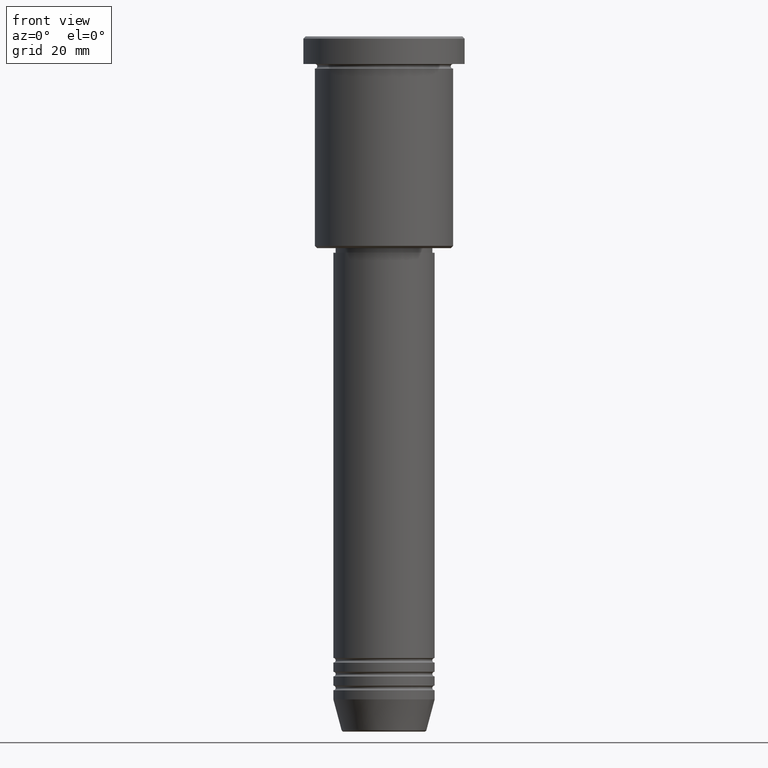
[diagram: clean part render]
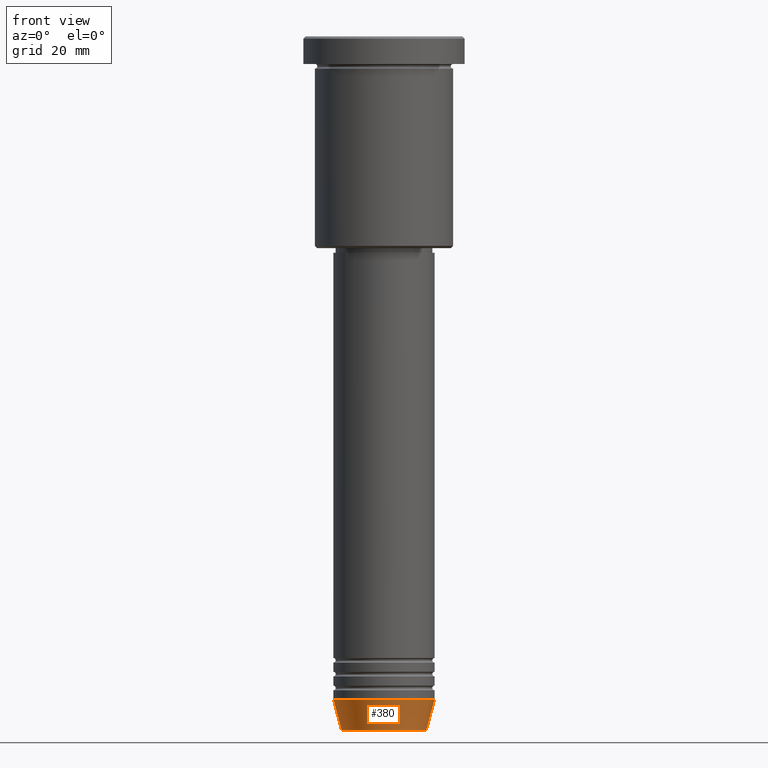
[diagram: same view with one face highlighted and labeled with its STEP entity id]
A machine part, front view. The second image highlights one B-rep face of the part: STEP entity #380.
In plain terms, the highlighted conical surface has half-angle 15 deg.
Its self-contained STEP definition (entity closure, byte-faithful):
#3 = VECTOR ( 'NONE', #538, 1000.000000000000000 ) ;
#15 = DIRECTION ( 'NONE',  ( 1.000000000000000000, 0.000000000000000000, 0.000000000000000000 ) ) ;
#17 = CARTESIAN_POINT ( 'NONE',  ( 0.000000000000000000, 0.000000000000000000, -144.0000000000000000 ) ) ;
#23 = CARTESIAN_POINT ( 'NONE',  ( 11.00000000000000000, 0.000000000000000000, -144.0000000000000000 ) ) ;
#46 = CARTESIAN_POINT ( 'NONE',  ( 0.000000000000000000, 0.000000000000000000, -144.0000000000000000 ) ) ;
#47 = AXIS2_PLACEMENT_3D ( 'NONE', #46, #422, #516 ) ;
#121 = ORIENTED_EDGE ( 'NONE', *, *, #664, .T. ) ;
#144 = EDGE_CURVE ( 'NONE', #954, #187, #232, .T. ) ;
#160 = ORIENTED_EDGE ( 'NONE', *, *, #1069, .T. ) ;
#172 = CARTESIAN_POINT ( 'NONE',  ( 9.223655072137194821, 0.000000000000000000, -150.6294095225512137 ) ) ;
#174 = EDGE_CURVE ( 'NONE', #733, #954, #630, .T. ) ;
#187 = VERTEX_POINT ( 'NONE', #23 ) ;
#232 = CIRCLE ( 'NONE', #385, 11.00000000000000000 ) ;
#327 = AXIS2_PLACEMENT_3D ( 'NONE', #1114, #561, #15 ) ;
#360 = CARTESIAN_POINT ( 'NONE',  ( -9.223655072137194821, 1.238341722557647596E-15, -150.6294095225512137 ) ) ;
#380 = ADVANCED_FACE ( 'NONE', ( #754 ), #666, .T. ) ;
#385 = AXIS2_PLACEMENT_3D ( 'NONE', #17, #1101, #928 ) ;
#422 = DIRECTION ( 'NONE',  ( -0.000000000000000000, -0.000000000000000000, 1.000000000000000000 ) ) ;
#516 = DIRECTION ( 'NONE',  ( 1.000000000000000000, 0.000000000000000000, 0.000000000000000000 ) ) ;
#538 = DIRECTION ( 'NONE',  ( -0.2588190451025213501, 3.169619151431772337E-17, 0.9659258262890680902 ) ) ;
#561 = DIRECTION ( 'NONE',  ( -0.000000000000000000, -0.000000000000000000, 1.000000000000000000 ) ) ;
#630 = LINE ( 'NONE', #829, #3 ) ;
#664 = EDGE_CURVE ( 'NONE', #733, #773, #912, .T. ) ;
#666 = CONICAL_SURFACE ( 'NONE', #47, 11.00000000000000000, 0.2617993877991500740 ) ;
#733 = VERTEX_POINT ( 'NONE', #360 ) ;
#754 = FACE_OUTER_BOUND ( 'NONE', #885, .T. ) ;
#773 = VERTEX_POINT ( 'NONE', #172 ) ;
#829 = CARTESIAN_POINT ( 'NONE',  ( -11.00000000000000000, 1.347111479062088405E-15, -144.0000000000000000 ) ) ;
#882 = CARTESIAN_POINT ( 'NONE',  ( 11.00000000000000000, 0.000000000000000000, -144.0000000000000000 ) ) ;
#885 = EDGE_LOOP ( 'NONE', ( #957, #121, #160, #936 ) ) ;
#912 = CIRCLE ( 'NONE', #327, 9.223655072137194821 ) ;
#928 = DIRECTION ( 'NONE',  ( 1.000000000000000000, 0.000000000000000000, 0.000000000000000000 ) ) ;
#936 = ORIENTED_EDGE ( 'NONE', *, *, #144, .F. ) ;
#954 = VERTEX_POINT ( 'NONE', #1010 ) ;
#957 = ORIENTED_EDGE ( 'NONE', *, *, #174, .F. ) ;
#966 = LINE ( 'NONE', #882, #999 ) ;
#968 = DIRECTION ( 'NONE',  ( 0.2588190451025213501, 0.000000000000000000, 0.9659258262890680902 ) ) ;
#999 = VECTOR ( 'NONE', #968, 1000.000000000000000 ) ;
#1010 = CARTESIAN_POINT ( 'NONE',  ( -11.00000000000000000, 1.347111479062088405E-15, -144.0000000000000000 ) ) ;
#1069 = EDGE_CURVE ( 'NONE', #773, #187, #966, .T. ) ;
#1101 = DIRECTION ( 'NONE',  ( -0.000000000000000000, -0.000000000000000000, 1.000000000000000000 ) ) ;
#1114 = CARTESIAN_POINT ( 'NONE',  ( 0.000000000000000000, 0.000000000000000000, -150.6294095225512137 ) ) ;